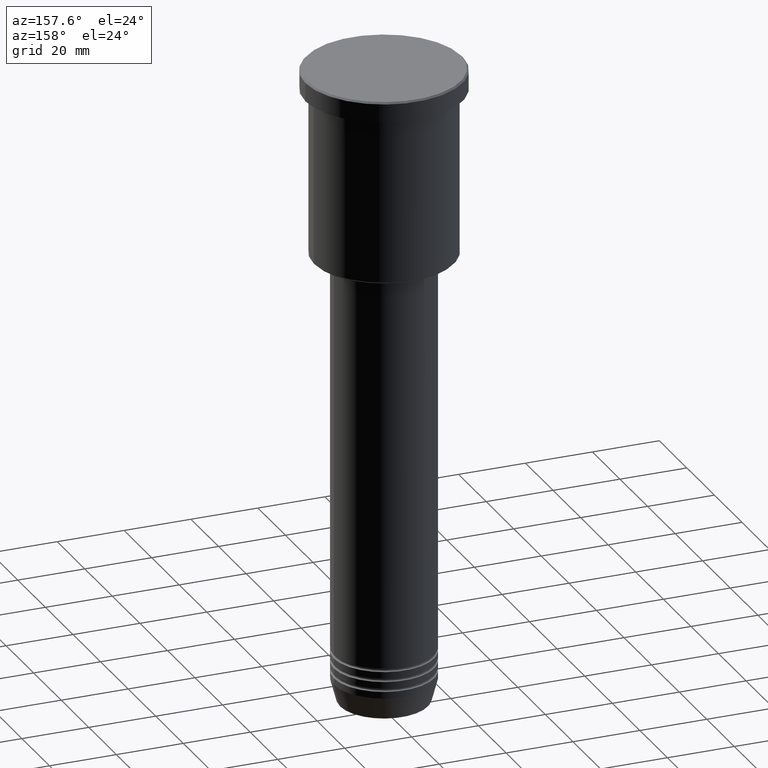
[diagram: clean part render]
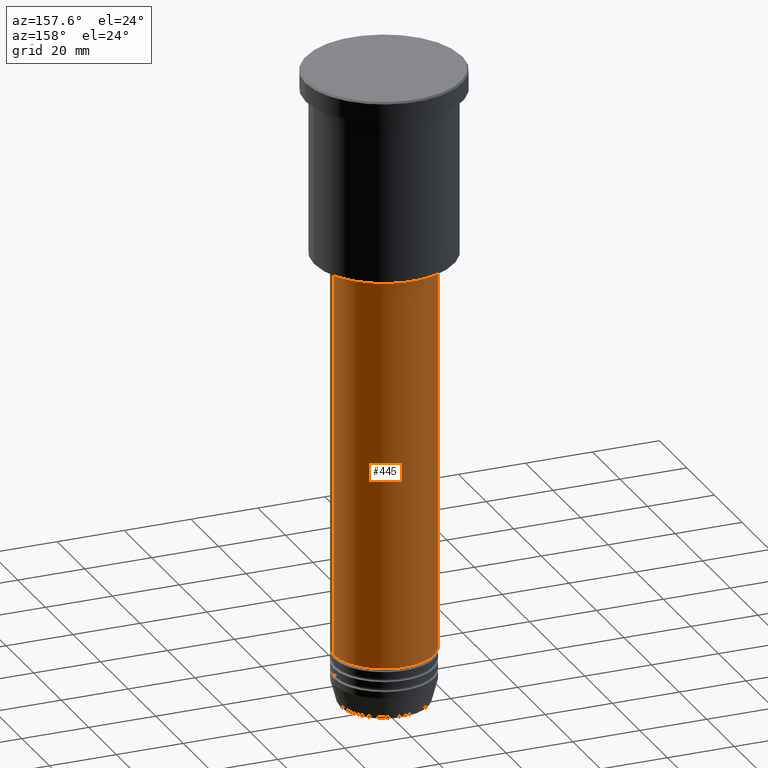
[diagram: same view with one face highlighted and labeled with its STEP entity id]
A machine part, auxiliary view. The second image highlights one B-rep face of the part: STEP entity #445.
In plain terms, the highlighted cylindrical surface (partial cylindrical patch) has radius 15 mm, axis along (-0, -0, 1).
Its self-contained STEP definition (entity closure, byte-faithful):
#17 = EDGE_CURVE ( 'NONE', #346, #501, #244, .T. ) ;
#65 = EDGE_CURVE ( 'NONE', #277, #553, #263, .T. ) ;
#67 = CYLINDRICAL_SURFACE ( 'NONE', #546, 15.00000000000000000 ) ;
#87 = EDGE_CURVE ( 'NONE', #346, #277, #272, .T. ) ;
#126 = LINE ( 'NONE', #315, #505 ) ;
#131 = CARTESIAN_POINT ( 'NONE',  ( 15.00000000000000000, 0.000000000000000000, -175.0000000000000000 ) ) ;
#237 = FACE_OUTER_BOUND ( 'NONE', #955, .T. ) ;
#244 = CIRCLE ( 'NONE', #644, 15.00000000000000000 ) ;
#259 = DIRECTION ( 'NONE',  ( -0.000000000000000000, -0.000000000000000000, 1.000000000000000000 ) ) ;
#263 = CIRCLE ( 'NONE', #924, 15.00000000000000000 ) ;
#269 = ORIENTED_EDGE ( 'NONE', *, *, #17, .T. ) ;
#272 = LINE ( 'NONE', #645, #426 ) ;
#277 = VERTEX_POINT ( 'NONE', #1026 ) ;
#315 = CARTESIAN_POINT ( 'NONE',  ( -15.00000000000000000, 1.836970198721029589E-15, 0.000000000000000000 ) ) ;
#327 = DIRECTION ( 'NONE',  ( 1.000000000000000000, 0.000000000000000000, 0.000000000000000000 ) ) ;
#333 = DIRECTION ( 'NONE',  ( 1.000000000000000000, 0.000000000000000000, 0.000000000000000000 ) ) ;
#346 = VERTEX_POINT ( 'NONE', #131 ) ;
#350 = CARTESIAN_POINT ( 'NONE',  ( -15.00000000000000000, 1.836970198721029589E-15, -175.0000000000000000 ) ) ;
#426 = VECTOR ( 'NONE', #1092, 1000.000000000000000 ) ;
#445 = ADVANCED_FACE ( 'NONE', ( #237 ), #67, .T. ) ;
#501 = VERTEX_POINT ( 'NONE', #350 ) ;
#505 = VECTOR ( 'NONE', #1040, 1000.000000000000000 ) ;
#519 = DIRECTION ( 'NONE',  ( -0.000000000000000000, -0.000000000000000000, 1.000000000000000000 ) ) ;
#530 = CARTESIAN_POINT ( 'NONE',  ( 0.000000000000000000, 0.000000000000000000, -57.00000000000001421 ) ) ;
#532 = ORIENTED_EDGE ( 'NONE', *, *, #1126, .T. ) ;
#546 = AXIS2_PLACEMENT_3D ( 'NONE', #793, #519, #333 ) ;
#553 = VERTEX_POINT ( 'NONE', #983 ) ;
#554 = ORIENTED_EDGE ( 'NONE', *, *, #65, .F. ) ;
#614 = DIRECTION ( 'NONE',  ( 1.000000000000000000, 0.000000000000000000, 0.000000000000000000 ) ) ;
#644 = AXIS2_PLACEMENT_3D ( 'NONE', #1063, #259, #614 ) ;
#645 = CARTESIAN_POINT ( 'NONE',  ( 15.00000000000000000, 0.000000000000000000, 0.000000000000000000 ) ) ;
#793 = CARTESIAN_POINT ( 'NONE',  ( 0.000000000000000000, 0.000000000000000000, 0.000000000000000000 ) ) ;
#924 = AXIS2_PLACEMENT_3D ( 'NONE', #530, #1146, #327 ) ;
#955 = EDGE_LOOP ( 'NONE', ( #269, #532, #554, #1008 ) ) ;
#983 = CARTESIAN_POINT ( 'NONE',  ( -15.00000000000000000, 1.836970198721029589E-15, -57.00000000000001421 ) ) ;
#1008 = ORIENTED_EDGE ( 'NONE', *, *, #87, .F. ) ;
#1026 = CARTESIAN_POINT ( 'NONE',  ( 15.00000000000000000, 0.000000000000000000, -57.00000000000001421 ) ) ;
#1040 = DIRECTION ( 'NONE',  ( -0.000000000000000000, -0.000000000000000000, 1.000000000000000000 ) ) ;
#1063 = CARTESIAN_POINT ( 'NONE',  ( 0.000000000000000000, 0.000000000000000000, -175.0000000000000000 ) ) ;
#1092 = DIRECTION ( 'NONE',  ( -0.000000000000000000, -0.000000000000000000, 1.000000000000000000 ) ) ;
#1126 = EDGE_CURVE ( 'NONE', #501, #553, #126, .T. ) ;
#1146 = DIRECTION ( 'NONE',  ( -0.000000000000000000, -0.000000000000000000, 1.000000000000000000 ) ) ;